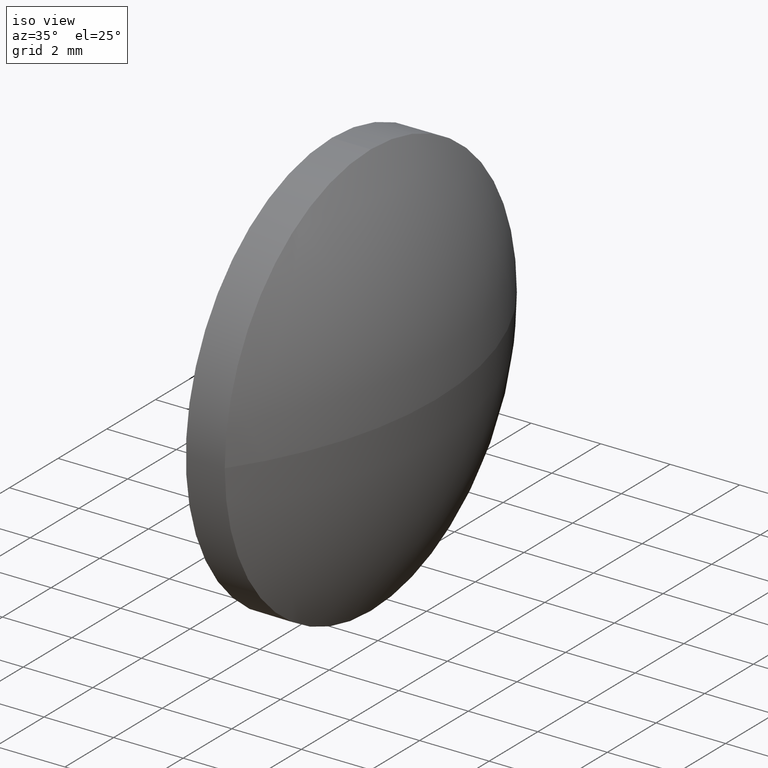
[diagram: clean part render]
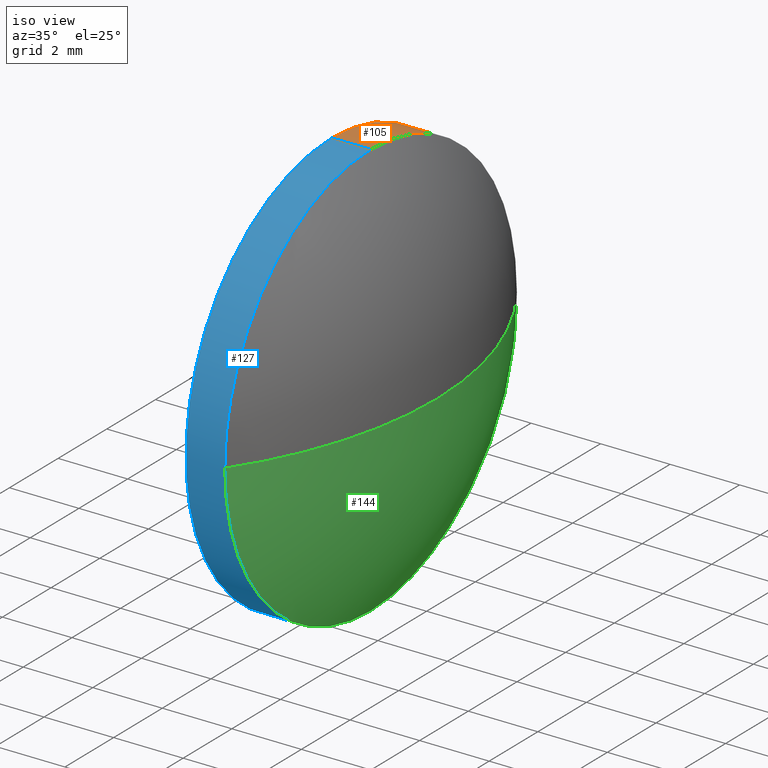
[diagram: same view with three faces highlighted in distinct colors, each labeled with its STEP entity id]
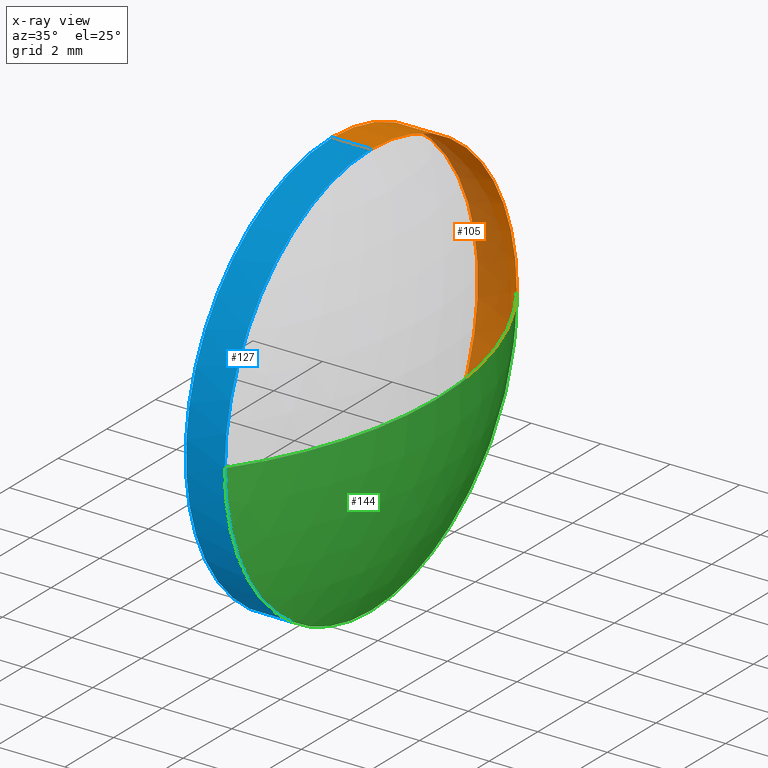
[diagram: x-ray of the same camera — body ghosted, the three highlighted faces saturated]
A machine part, iso view with three faces highlighted in distinct colors.
The next image is the same camera in x-ray (body ghosted, the three faces saturated) — at least one of them is partly hidden behind the body in this view.
Their STEP definitions:

[orange] entity #105 — the highlighted cylindrical surface (partial cylindrical patch) has radius 6 mm, axis along (-1, -0, -0).
#4 = AXIS2_PLACEMENT_3D ( 'NONE', #113, #44, #179 ) ;
#11 = EDGE_CURVE ( 'NONE', #169, #64, #174, .T. ) ;
#12 = ORIENTED_EDGE ( 'NONE', *, *, #148, .T. ) ;
#14 = CARTESIAN_POINT ( 'NONE',  ( 433.2311950534910400, 60.80641332261154000, 0.0000000000000000000 ) ) ;
#18 = CIRCLE ( 'NONE', #67, 5.999999999999998200 ) ;
#22 = CIRCLE ( 'NONE', #165, 5.999999999999998200 ) ;
#25 = ORIENTED_EDGE ( 'NONE', *, *, #125, .T. ) ;
#27 = VERTEX_POINT ( 'NONE', #116 ) ;
#36 = LINE ( 'NONE', #130, #172 ) ;
#37 = EDGE_LOOP ( 'NONE', ( #25, #12, #152, #150, #72 ) ) ;
#41 = DIRECTION ( 'NONE',  ( -1.000000000000000000, -0.0000000000000000000, -0.0000000000000000000 ) ) ;
#42 = CARTESIAN_POINT ( 'NONE',  ( 432.1111950534910300, 54.80641332261154700, -5.999999999999998200 ) ) ;
#44 = DIRECTION ( 'NONE',  ( -1.000000000000000000, -0.0000000000000000000, -0.0000000000000000000 ) ) ;
#60 = DIRECTION ( 'NONE',  ( -1.000000000000000000, -0.0000000000000000000, -0.0000000000000000000 ) ) ;
#64 = VERTEX_POINT ( 'NONE', #14 ) ;
#67 = AXIS2_PLACEMENT_3D ( 'NONE', #154, #155, #141 ) ;
#68 = EDGE_CURVE ( 'NONE', #169, #27, #111, .T. ) ;
#72 = ORIENTED_EDGE ( 'NONE', *, *, #11, .T. ) ;
#73 = DIRECTION ( 'NONE',  ( -1.000000000000000000, -0.0000000000000000000, -0.0000000000000000000 ) ) ;
#77 = AXIS2_PLACEMENT_3D ( 'NONE', #126, #151, #96 ) ;
#87 = CARTESIAN_POINT ( 'NONE',  ( 433.2311950534910400, 54.80641332261154700, -5.999999999999998200 ) ) ;
#96 = DIRECTION ( 'NONE',  ( 0.0000000000000000000, 0.0000000000000000000, 1.000000000000000000 ) ) ;
#98 = CARTESIAN_POINT ( 'NONE',  ( 430.4750955185627400, 54.80641332261154700, 5.999999999999998200 ) ) ;
#99 = FACE_OUTER_BOUND ( 'NONE', #37, .T. ) ;
#105 = ADVANCED_FACE ( 'NONE', ( #99 ), #163, .T. ) ;
#109 = VERTEX_POINT ( 'NONE', #42 ) ;
#111 = LINE ( 'NONE', #98, #180 ) ;
#113 = CARTESIAN_POINT ( 'NONE',  ( 430.4750955185627400, 54.80641332261154700, 0.0000000000000000000 ) ) ;
#116 = CARTESIAN_POINT ( 'NONE',  ( 432.1111950534910300, 54.80641332261154700, 5.999999999999998200 ) ) ;
#125 = EDGE_CURVE ( 'NONE', #64, #177, #22, .T. ) ;
#126 = CARTESIAN_POINT ( 'NONE',  ( 433.2311950534910400, 54.80641332261154700, 0.0000000000000000000 ) ) ;
#129 = CARTESIAN_POINT ( 'NONE',  ( 433.2311950534910400, 54.80641332261154700, 5.999999999999998200 ) ) ;
#130 = CARTESIAN_POINT ( 'NONE',  ( 430.4750955185627400, 54.80641332261154700, -5.999999999999998200 ) ) ;
#132 = CARTESIAN_POINT ( 'NONE',  ( 433.2311950534910400, 54.80641332261154700, 0.0000000000000000000 ) ) ;
#134 = EDGE_CURVE ( 'NONE', #27, #109, #18, .T. ) ;
#141 = DIRECTION ( 'NONE',  ( 0.0000000000000000000, 0.0000000000000000000, 1.000000000000000000 ) ) ;
#148 = EDGE_CURVE ( 'NONE', #177, #109, #36, .T. ) ;
#150 = ORIENTED_EDGE ( 'NONE', *, *, #68, .F. ) ;
#151 = DIRECTION ( 'NONE',  ( -1.000000000000000000, -0.0000000000000000000, -0.0000000000000000000 ) ) ;
#152 = ORIENTED_EDGE ( 'NONE', *, *, #134, .F. ) ;
#154 = CARTESIAN_POINT ( 'NONE',  ( 432.1111950534910300, 54.80641332261154700, 0.0000000000000000000 ) ) ;
#155 = DIRECTION ( 'NONE',  ( -1.000000000000000000, -0.0000000000000000000, -0.0000000000000000000 ) ) ;
#159 = DIRECTION ( 'NONE',  ( 0.0000000000000000000, 0.0000000000000000000, 1.000000000000000000 ) ) ;
#163 = CYLINDRICAL_SURFACE ( 'NONE', #4, 5.999999999999998200 ) ;
#165 = AXIS2_PLACEMENT_3D ( 'NONE', #132, #73, #159 ) ;
#169 = VERTEX_POINT ( 'NONE', #129 ) ;
#172 = VECTOR ( 'NONE', #60, 1000.000000000000000 ) ;
#174 = CIRCLE ( 'NONE', #77, 5.999999999999998200 ) ;
#177 = VERTEX_POINT ( 'NONE', #87 ) ;
#179 = DIRECTION ( 'NONE',  ( 0.0000000000000000000, 0.0000000000000000000, 1.000000000000000000 ) ) ;
#180 = VECTOR ( 'NONE', #41, 1000.000000000000000 ) ;

[blue] entity #127 — the highlighted cylindrical surface (partial cylindrical patch) has radius 6 mm, axis along (-1, -0, -0).
#2 = DIRECTION ( 'NONE',  ( 0.0000000000000000000, 0.0000000000000000000, 1.000000000000000000 ) ) ;
#3 = EDGE_LOOP ( 'NONE', ( #133, #54, #10, #145, #49 ) ) ;
#7 = FACE_OUTER_BOUND ( 'NONE', #3, .T. ) ;
#10 = ORIENTED_EDGE ( 'NONE', *, *, #35, .T. ) ;
#13 = DIRECTION ( 'NONE',  ( 0.0000000000000000000, 0.0000000000000000000, 1.000000000000000000 ) ) ;
#16 = CARTESIAN_POINT ( 'NONE',  ( 430.4750955185627400, 54.80641332261154700, 0.0000000000000000000 ) ) ;
#27 = VERTEX_POINT ( 'NONE', #116 ) ;
#28 = AXIS2_PLACEMENT_3D ( 'NONE', #171, #70, #2 ) ;
#29 = DIRECTION ( 'NONE',  ( 0.0000000000000000000, 0.0000000000000000000, 1.000000000000000000 ) ) ;
#33 = AXIS2_PLACEMENT_3D ( 'NONE', #16, #57, #29 ) ;
#35 = EDGE_CURVE ( 'NONE', #139, #169, #66, .T. ) ;
#36 = LINE ( 'NONE', #130, #172 ) ;
#41 = DIRECTION ( 'NONE',  ( -1.000000000000000000, -0.0000000000000000000, -0.0000000000000000000 ) ) ;
#42 = CARTESIAN_POINT ( 'NONE',  ( 432.1111950534910300, 54.80641332261154700, -5.999999999999998200 ) ) ;
#49 = ORIENTED_EDGE ( 'NONE', *, *, #91, .F. ) ;
#54 = ORIENTED_EDGE ( 'NONE', *, *, #118, .T. ) ;
#57 = DIRECTION ( 'NONE',  ( -1.000000000000000000, -0.0000000000000000000, -0.0000000000000000000 ) ) ;
#58 = CIRCLE ( 'NONE', #28, 5.999999999999998200 ) ;
#60 = DIRECTION ( 'NONE',  ( -1.000000000000000000, -0.0000000000000000000, -0.0000000000000000000 ) ) ;
#65 = AXIS2_PLACEMENT_3D ( 'NONE', #119, #69, #81 ) ;
#66 = CIRCLE ( 'NONE', #158, 5.999999999999998200 ) ;
#68 = EDGE_CURVE ( 'NONE', #169, #27, #111, .T. ) ;
#69 = DIRECTION ( 'NONE',  ( -1.000000000000000000, -0.0000000000000000000, -0.0000000000000000000 ) ) ;
#70 = DIRECTION ( 'NONE',  ( -1.000000000000000000, -0.0000000000000000000, -0.0000000000000000000 ) ) ;
#81 = DIRECTION ( 'NONE',  ( 0.0000000000000000000, 0.0000000000000000000, 1.000000000000000000 ) ) ;
#83 = CARTESIAN_POINT ( 'NONE',  ( 433.2311950534910400, 54.80641332261154700, 0.0000000000000000000 ) ) ;
#87 = CARTESIAN_POINT ( 'NONE',  ( 433.2311950534910400, 54.80641332261154700, -5.999999999999998200 ) ) ;
#91 = EDGE_CURVE ( 'NONE', #109, #27, #138, .T. ) ;
#98 = CARTESIAN_POINT ( 'NONE',  ( 430.4750955185627400, 54.80641332261154700, 5.999999999999998200 ) ) ;
#109 = VERTEX_POINT ( 'NONE', #42 ) ;
#111 = LINE ( 'NONE', #98, #180 ) ;
#116 = CARTESIAN_POINT ( 'NONE',  ( 432.1111950534910300, 54.80641332261154700, 5.999999999999998200 ) ) ;
#118 = EDGE_CURVE ( 'NONE', #177, #139, #58, .T. ) ;
#119 = CARTESIAN_POINT ( 'NONE',  ( 432.1111950534910300, 54.80641332261154700, 0.0000000000000000000 ) ) ;
#127 = ADVANCED_FACE ( 'NONE', ( #7 ), #176, .T. ) ;
#129 = CARTESIAN_POINT ( 'NONE',  ( 433.2311950534910400, 54.80641332261154700, 5.999999999999998200 ) ) ;
#130 = CARTESIAN_POINT ( 'NONE',  ( 430.4750955185627400, 54.80641332261154700, -5.999999999999998200 ) ) ;
#131 = CARTESIAN_POINT ( 'NONE',  ( 433.2311950534910400, 48.80641332261152600, -7.347880794884107900E-016 ) ) ;
#133 = ORIENTED_EDGE ( 'NONE', *, *, #148, .F. ) ;
#138 = CIRCLE ( 'NONE', #65, 5.999999999999998200 ) ;
#139 = VERTEX_POINT ( 'NONE', #131 ) ;
#145 = ORIENTED_EDGE ( 'NONE', *, *, #68, .T. ) ;
#148 = EDGE_CURVE ( 'NONE', #177, #109, #36, .T. ) ;
#158 = AXIS2_PLACEMENT_3D ( 'NONE', #83, #184, #13 ) ;
#169 = VERTEX_POINT ( 'NONE', #129 ) ;
#171 = CARTESIAN_POINT ( 'NONE',  ( 433.2311950534910400, 54.80641332261154700, 0.0000000000000000000 ) ) ;
#172 = VECTOR ( 'NONE', #60, 1000.000000000000000 ) ;
#176 = CYLINDRICAL_SURFACE ( 'NONE', #33, 5.999999999999998200 ) ;
#177 = VERTEX_POINT ( 'NONE', #87 ) ;
#180 = VECTOR ( 'NONE', #41, 1000.000000000000000 ) ;
#184 = DIRECTION ( 'NONE',  ( -1.000000000000000000, -0.0000000000000000000, -0.0000000000000000000 ) ) ;

[green] entity #144 — the highlighted spherical surface has radius 10.5145 mm.
#2 = DIRECTION ( 'NONE',  ( 0.0000000000000000000, 0.0000000000000000000, 1.000000000000000000 ) ) ;
#14 = CARTESIAN_POINT ( 'NONE',  ( 433.2311950534910400, 60.80641332261154000, 0.0000000000000000000 ) ) ;
#20 = CARTESIAN_POINT ( 'NONE',  ( 424.5967269683846400, 54.80641332261151900, 0.0000000000000000000 ) ) ;
#21 = AXIS2_PLACEMENT_3D ( 'NONE', #115, #166, #82 ) ;
#22 = CIRCLE ( 'NONE', #165, 5.999999999999998200 ) ;
#28 = AXIS2_PLACEMENT_3D ( 'NONE', #171, #70, #2 ) ;
#30 = DIRECTION ( 'NONE',  ( 0.0000000000000000000, 1.000000000000000000, 0.0000000000000000000 ) ) ;
#38 = CIRCLE ( 'NONE', #21, 10.51446808510642100 ) ;
#39 = CARTESIAN_POINT ( 'NONE',  ( 435.1111950534910300, 54.80641332261151900, 0.0000000000000000000 ) ) ;
#40 = VERTEX_POINT ( 'NONE', #39 ) ;
#43 = SPHERICAL_SURFACE ( 'NONE', #167, 10.51446808510642800 ) ;
#55 = EDGE_LOOP ( 'NONE', ( #124, #114, #75, #95 ) ) ;
#58 = CIRCLE ( 'NONE', #28, 5.999999999999998200 ) ;
#64 = VERTEX_POINT ( 'NONE', #14 ) ;
#70 = DIRECTION ( 'NONE',  ( -1.000000000000000000, -0.0000000000000000000, -0.0000000000000000000 ) ) ;
#73 = DIRECTION ( 'NONE',  ( -1.000000000000000000, -0.0000000000000000000, -0.0000000000000000000 ) ) ;
#75 = ORIENTED_EDGE ( 'NONE', *, *, #118, .F. ) ;
#82 = DIRECTION ( 'NONE',  ( 1.000000000000000000, 0.0000000000000000000, 0.0000000000000000000 ) ) ;
#84 = DIRECTION ( 'NONE',  ( -0.0000000000000000000, 0.0000000000000000000, -1.000000000000000000 ) ) ;
#87 = CARTESIAN_POINT ( 'NONE',  ( 433.2311950534910400, 54.80641332261154700, -5.999999999999998200 ) ) ;
#95 = ORIENTED_EDGE ( 'NONE', *, *, #125, .F. ) ;
#97 = AXIS2_PLACEMENT_3D ( 'NONE', #103, #101, #168 ) ;
#101 = DIRECTION ( 'NONE',  ( 0.0000000000000000000, 1.224646799147353200E-016, -1.000000000000000000 ) ) ;
#103 = CARTESIAN_POINT ( 'NONE',  ( 424.5967269683846400, 54.80641332261151900, 0.0000000000000000000 ) ) ;
#106 = EDGE_CURVE ( 'NONE', #40, #64, #38, .T. ) ;
#114 = ORIENTED_EDGE ( 'NONE', *, *, #137, .T. ) ;
#115 = CARTESIAN_POINT ( 'NONE',  ( 424.5967269683846400, 54.80641332261151900, 0.0000000000000000000 ) ) ;
#118 = EDGE_CURVE ( 'NONE', #177, #139, #58, .T. ) ;
#124 = ORIENTED_EDGE ( 'NONE', *, *, #106, .F. ) ;
#125 = EDGE_CURVE ( 'NONE', #64, #177, #22, .T. ) ;
#131 = CARTESIAN_POINT ( 'NONE',  ( 433.2311950534910400, 48.80641332261152600, -7.347880794884107900E-016 ) ) ;
#132 = CARTESIAN_POINT ( 'NONE',  ( 433.2311950534910400, 54.80641332261154700, 0.0000000000000000000 ) ) ;
#137 = EDGE_CURVE ( 'NONE', #40, #139, #173, .T. ) ;
#139 = VERTEX_POINT ( 'NONE', #131 ) ;
#144 = ADVANCED_FACE ( 'NONE', ( #156 ), #43, .T. ) ;
#156 = FACE_OUTER_BOUND ( 'NONE', #55, .T. ) ;
#159 = DIRECTION ( 'NONE',  ( 0.0000000000000000000, 0.0000000000000000000, 1.000000000000000000 ) ) ;
#165 = AXIS2_PLACEMENT_3D ( 'NONE', #132, #73, #159 ) ;
#166 = DIRECTION ( 'NONE',  ( -0.0000000000000000000, 0.0000000000000000000, 1.000000000000000000 ) ) ;
#167 = AXIS2_PLACEMENT_3D ( 'NONE', #20, #84, #30 ) ;
#168 = DIRECTION ( 'NONE',  ( 0.0000000000000000000, 1.000000000000000000, 1.224646799147353900E-016 ) ) ;
#171 = CARTESIAN_POINT ( 'NONE',  ( 433.2311950534910400, 54.80641332261154700, 0.0000000000000000000 ) ) ;
#173 = CIRCLE ( 'NONE', #97, 10.51446808510642100 ) ;
#177 = VERTEX_POINT ( 'NONE', #87 ) ;